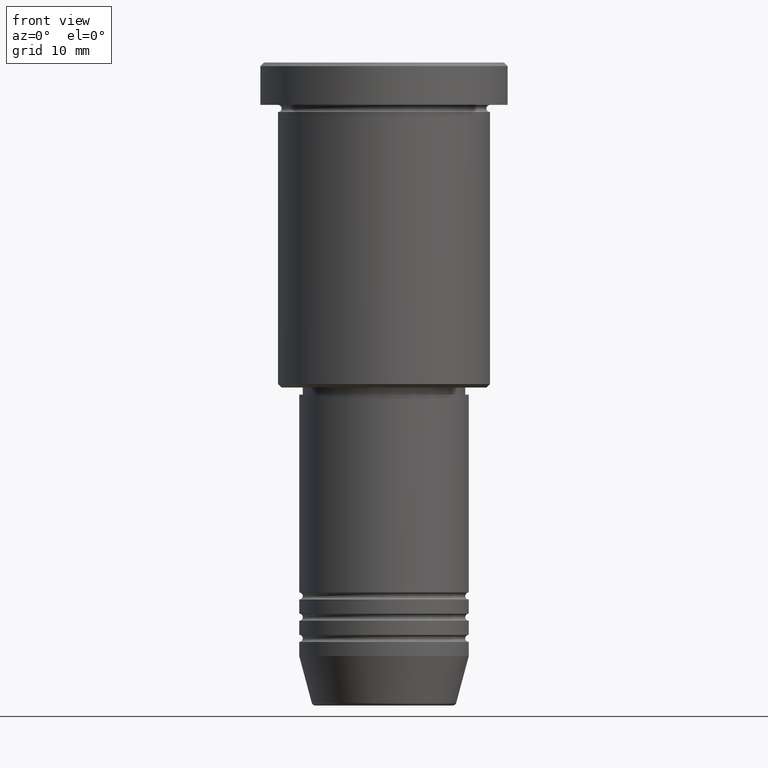
[diagram: clean part render]
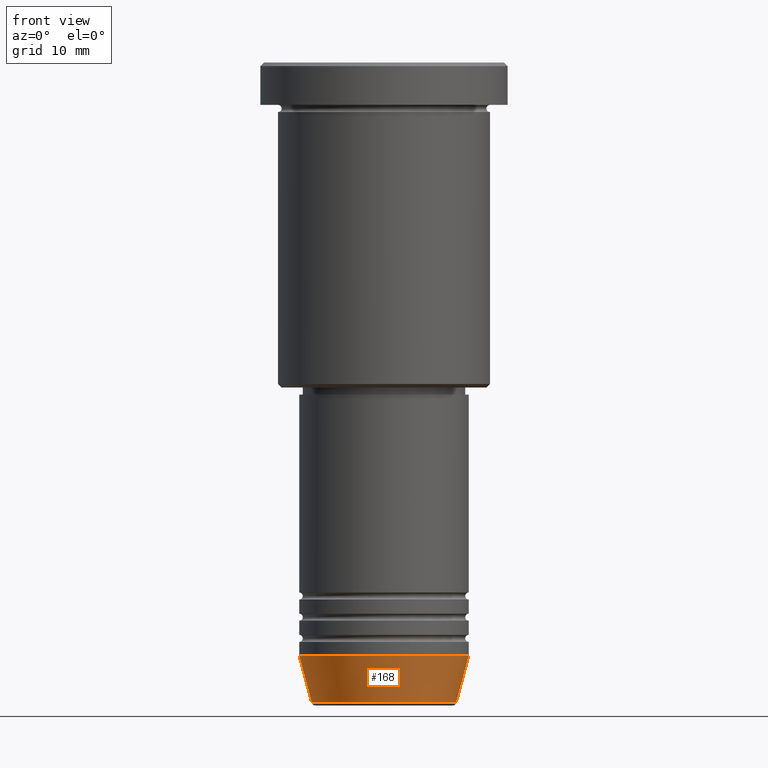
[diagram: same view with one face highlighted and labeled with its STEP entity id]
A machine part, front view. The second image highlights one B-rep face of the part: STEP entity #168.
In plain terms, the highlighted conical surface has half-angle 15 deg.
Its self-contained STEP definition (entity closure, byte-faithful):
#8 = LINE ( 'NONE', #816, #360 ) ;
#40 = AXIS2_PLACEMENT_3D ( 'NONE', #373, #358, #1002 ) ;
#45 = DIRECTION ( 'NONE',  ( -0.000000000000000000, -0.000000000000000000, 1.000000000000000000 ) ) ;
#138 = VERTEX_POINT ( 'NONE', #958 ) ;
#168 = ADVANCED_FACE ( 'NONE', ( #480 ), #381, .T. ) ;
#179 = CARTESIAN_POINT ( 'NONE',  ( 10.22365507213718949, 0.000000000000000000, -90.62940952255125637 ) ) ;
#207 = CIRCLE ( 'NONE', #576, 10.22365507213718949 ) ;
#215 = DIRECTION ( 'NONE',  ( 1.000000000000000000, 0.000000000000000000, 0.000000000000000000 ) ) ;
#218 = CARTESIAN_POINT ( 'NONE',  ( 0.000000000000000000, 0.000000000000000000, -83.99999999999998579 ) ) ;
#306 = ORIENTED_EDGE ( 'NONE', *, *, #452, .F. ) ;
#339 = ORIENTED_EDGE ( 'NONE', *, *, #508, .T. ) ;
#358 = DIRECTION ( 'NONE',  ( -0.000000000000000000, -0.000000000000000000, 1.000000000000000000 ) ) ;
#360 = VECTOR ( 'NONE', #450, 1000.000000000000000 ) ;
#373 = CARTESIAN_POINT ( 'NONE',  ( 0.000000000000000000, 0.000000000000000000, -83.99999999999998579 ) ) ;
#381 = CONICAL_SURFACE ( 'NONE', #562, 12.00000000000000000, 0.2617993877991500740 ) ;
#430 = VERTEX_POINT ( 'NONE', #1018 ) ;
#450 = DIRECTION ( 'NONE',  ( 0.2588190451025213501, 0.000000000000000000, 0.9659258262890680902 ) ) ;
#452 = EDGE_CURVE ( 'NONE', #138, #430, #838, .T. ) ;
#480 = FACE_OUTER_BOUND ( 'NONE', #1180, .T. ) ;
#494 = LINE ( 'NONE', #750, #825 ) ;
#508 = EDGE_CURVE ( 'NONE', #901, #430, #8, .T. ) ;
#562 = AXIS2_PLACEMENT_3D ( 'NONE', #218, #687, #1025 ) ;
#576 = AXIS2_PLACEMENT_3D ( 'NONE', #679, #45, #215 ) ;
#679 = CARTESIAN_POINT ( 'NONE',  ( 0.000000000000000000, 0.000000000000000000, -90.62940952255125637 ) ) ;
#687 = DIRECTION ( 'NONE',  ( -0.000000000000000000, -0.000000000000000000, 1.000000000000000000 ) ) ;
#715 = VERTEX_POINT ( 'NONE', #895 ) ;
#750 = CARTESIAN_POINT ( 'NONE',  ( -12.00000000000000000, 1.469576158976823947E-15, -83.99999999999998579 ) ) ;
#759 = DIRECTION ( 'NONE',  ( -0.2588190451025213501, 3.169619151431772337E-17, 0.9659258262890680902 ) ) ;
#800 = ORIENTED_EDGE ( 'NONE', *, *, #1151, .F. ) ;
#816 = CARTESIAN_POINT ( 'NONE',  ( 12.00000000000000000, 0.000000000000000000, -83.99999999999998579 ) ) ;
#825 = VECTOR ( 'NONE', #759, 1000.000000000000000 ) ;
#838 = CIRCLE ( 'NONE', #40, 12.00000000000000000 ) ;
#895 = CARTESIAN_POINT ( 'NONE',  ( -10.22365507213718949, 1.360806402472382547E-15, -90.62940952255125637 ) ) ;
#901 = VERTEX_POINT ( 'NONE', #179 ) ;
#958 = CARTESIAN_POINT ( 'NONE',  ( -12.00000000000000000, 1.469576158976823947E-15, -83.99999999999998579 ) ) ;
#1002 = DIRECTION ( 'NONE',  ( 1.000000000000000000, 0.000000000000000000, 0.000000000000000000 ) ) ;
#1018 = CARTESIAN_POINT ( 'NONE',  ( 12.00000000000000000, 0.000000000000000000, -83.99999999999998579 ) ) ;
#1025 = DIRECTION ( 'NONE',  ( 1.000000000000000000, 0.000000000000000000, 0.000000000000000000 ) ) ;
#1068 = ORIENTED_EDGE ( 'NONE', *, *, #1071, .T. ) ;
#1071 = EDGE_CURVE ( 'NONE', #715, #901, #207, .T. ) ;
#1151 = EDGE_CURVE ( 'NONE', #715, #138, #494, .T. ) ;
#1180 = EDGE_LOOP ( 'NONE', ( #800, #1068, #339, #306 ) ) ;